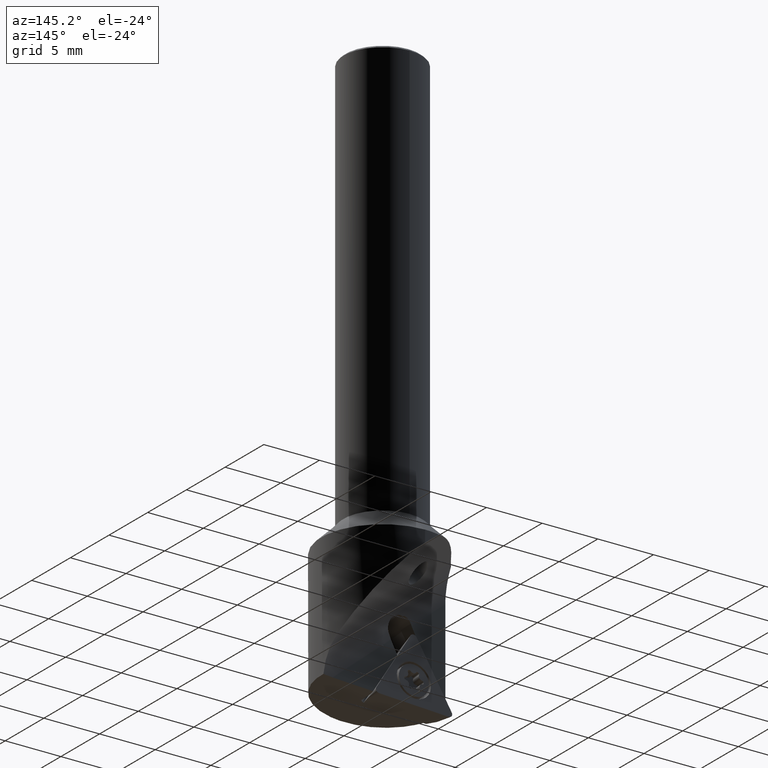
[diagram: clean part render]
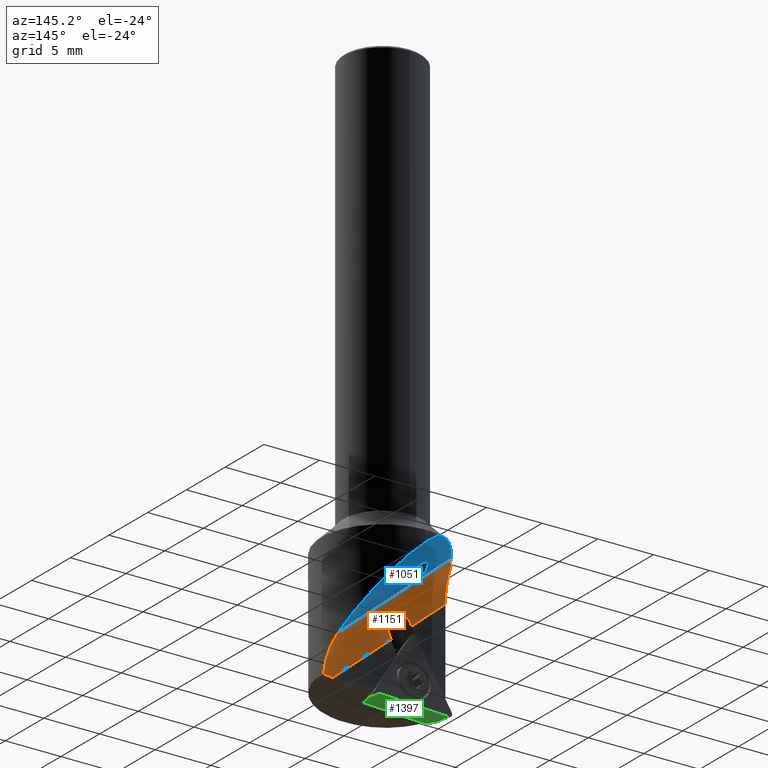
[diagram: same view with three faces highlighted in distinct colors, each labeled with its STEP entity id]
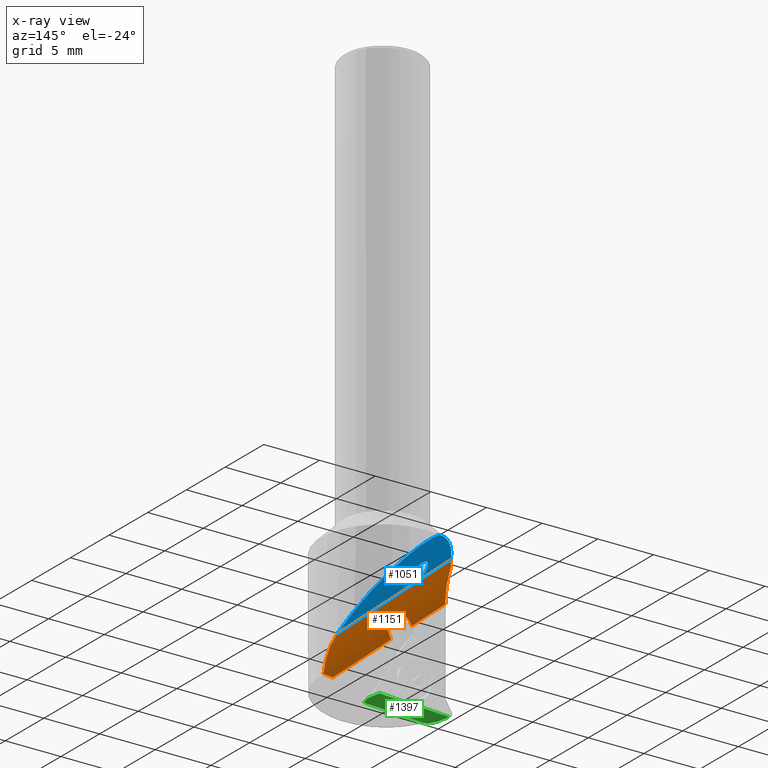
[diagram: x-ray of the same camera — body ghosted, the three highlighted faces saturated]
A machine part, auxiliary view with three faces highlighted in distinct colors.
The next image is the same camera in x-ray (body ghosted, the three faces saturated) — at least one of them is partly hidden behind the body in this view.
Their STEP definitions:

[orange] entity #1151 — the highlighted cylindrical surface (partial cylindrical patch) has radius 3 mm, axis along (-0.766, -0, 0.6428).
#585=EDGE_CURVE('NONE',#1517,#1227,#1623,.T.);
#633=VERTEX_POINT('NONE',#1676);
#645=EDGE_CURVE('NONE',#1227,#657,#1689,.T.);
#657=VERTEX_POINT('NONE',#1701);
#665=VERTEX_POINT('NONE',#1709);
#673=EDGE_CURVE('NONE',#893,#1059,#1719,.T.);
#735=EDGE_CURVE('NONE',#633,#1075,#1786,.T.);
#877=EDGE_CURVE('NONE',#935,#1075,#1947,.T.);
#893=VERTEX_POINT('NONE',#1966);
#921=EDGE_CURVE('NONE',#657,#665,#1997,.T.);
#935=VERTEX_POINT('NONE',#2012);
#1057=VERTEX_POINT('NONE',#2149);
#1059=VERTEX_POINT('NONE',#2151);
#1075=VERTEX_POINT('NONE',#2169);
#1087=VERTEX_POINT('NONE',#2182);
#1119=EDGE_CURVE('NONE',#1173,#1379,#2216,.T.);
#1121=EDGE_CURVE('NONE',#935,#1405,#2218,.T.);
#1151=ADVANCED_FACE('NONE',(#2251),#2252,.F.);
#1173=VERTEX_POINT('NONE',#2276);
#1199=EDGE_CURVE('NONE',#1379,#1305,#2304,.T.);
#1227=VERTEX_POINT('NONE',#2334);
#1231=EDGE_CURVE('NONE',#1305,#1517,#2338,.T.);
#1305=VERTEX_POINT('NONE',#2419);
#1313=EDGE_CURVE('NONE',#1173,#893,#2428,.T.);
#1321=EDGE_CURVE('NONE',#633,#1401,#2436,.T.);
#1355=EDGE_CURVE('NONE',#1059,#1057,#2475,.T.);
#1373=EDGE_CURVE('NONE',#665,#1087,#2494,.T.);
#1379=VERTEX_POINT('NONE',#2501);
#1401=VERTEX_POINT('NONE',#2524);
#1405=VERTEX_POINT('NONE',#2529);
#1517=VERTEX_POINT('NONE',#2649);
#1523=EDGE_CURVE('NONE',#1405,#1087,#2655,.T.);
#1531=EDGE_CURVE('NONE',#1057,#1401,#2665,.T.);
#1623=B_SPLINE_CURVE_WITH_KNOTS('',3,(#2771,#2772,#2773,#2774,#2775,#2776),.UNSPECIFIED.,.F.,.F.,(4,2,4),(0.0,0.000274646844779017,0.000549293689558034),.UNSPECIFIED.);
#1676=CARTESIAN_POINT('',(-5.39223240722244,1.08343420035556,-4.99999999999999));
#1689=B_SPLINE_CURVE_WITH_KNOTS('',3,(#2890,#2891,#2892,#2893,#2894,#2895,#2896,#2897,#2898,#2899),.UNSPECIFIED.,.F.,.F.,(4,2,2,2,4),(0.000549293689558034,0.000816847990642815,0.0010844022917276,0.00135195659281238,0.00161951089389716),.UNSPECIFIED.);
#1701=CARTESIAN_POINT('',(-0.790244442421355,0.514224544557184,-9.89204476732578));
#1709=CARTESIAN_POINT('',(-0.967898861469995,0.491775151667943,-9.8031436174014));
#1719=LINE('',#2968,#2969);
#1786=B_SPLINE_CURVE_WITH_KNOTS('',3,(#3061,#3062,#3063,#3064,#3065,#3066,#3067,#3068),.UNSPECIFIED.,.F.,.F.,(4,2,2,4),(0.000799514902478356,0.00152126247808948,0.00224301005370061,0.00368650520492287),.UNSPECIFIED.);
#1947=LINE('',#3309,#3310);
#1966=CARTESIAN_POINT('',(5.2306787322488,1.70000000000001,-13.2975129704954));
#1997=(B_SPLINE_CURVE(3,(#3386,#3387,#3388,#3389),.UNSPECIFIED.,.F.,.F.)B_SPLINE_CURVE_WITH_KNOTS((4,4),(4.17086109430709,4.187950713552),.UNSPECIFIED.)RATIONAL_B_SPLINE_CURVE((1.0,0.999975662224255,0.999975662224255,1.0))BOUNDED_CURVE()REPRESENTATION_ITEM('')GEOMETRIC_REPRESENTATION_ITEM()CURVE());
#2012=CARTESIAN_POINT('',(-2.47060787011,0.2,-10.226913847407));
#2149=CARTESIAN_POINT('',(-1.99609645606622,1.70000000000001,-7.23352857537918));
#2151=CARTESIAN_POINT('',(-1.51682035220565,1.70000000000001,-7.63568897736066));
#2169=CARTESIAN_POINT('',(-5.49636243346452,0.2,-7.68800430926332));
#2182=CARTESIAN_POINT('',(-1.49656323032141,0.379851121760977,-9.70865511755389));
#2216=(B_SPLINE_CURVE(3,(#3708,#3709,#3710,#3711),.UNSPECIFIED.,.F.,.F.)B_SPLINE_CURVE_WITH_KNOTS((4,4),(4.51171705851309,4.7125516476058),.UNSPECIFIED.)RATIONAL_B_SPLINE_CURVE((1.0,0.99664161247102,0.99664161247102,1.0))BOUNDED_CURVE()REPRESENTATION_ITEM('')GEOMETRIC_REPRESENTATION_ITEM()CURVE());
#2218=(B_SPLINE_CURVE(3,(#3721,#3722,#3723,#3724),.UNSPECIFIED.,.F.,.F.)B_SPLINE_CURVE_WITH_KNOTS((4,4),(3.99713013139344,4.05532574302093),.UNSPECIFIED.)RATIONAL_B_SPLINE_CURVE((1.0,0.999717792478128,0.999717792478128,1.0))BOUNDED_CURVE()REPRESENTATION_ITEM('')GEOMETRIC_REPRESENTATION_ITEM()CURVE());
#2251=FACE_OUTER_BOUND('',#3771,.T.);
#2252=CYLINDRICAL_SURFACE('',#3772,3.0);
#2276=CARTESIAN_POINT('',(5.49383696340205,0.260298712169993,-16.1286403783753));
#2304=LINE('',#3888,#3889);
#2334=CARTESIAN_POINT('',(-0.245605407406325,0.383477007004207,-10.745357847913));
#2338=(B_SPLINE_CURVE(3,(#3956,#3957,#3958,#3959),.UNSPECIFIED.,.F.,.F.)B_SPLINE_CURVE_WITH_KNOTS((4,4),(4.53927260112615,4.72902118801413),.UNSPECIFIED.)RATIONAL_B_SPLINE_CURVE((1.0,0.997001872705169,0.997001872705169,1.0))BOUNDED_CURVE()REPRESENTATION_ITEM('')GEOMETRIC_REPRESENTATION_ITEM()CURVE());
#2419=CARTESIAN_POINT('',(-0.61448920101397,0.2,-11.7843823380668));
#2428=B_SPLINE_CURVE_WITH_KNOTS('',3,(#4098,#4099,#4100,#4101,#4102,#4103,#4104,#4105),.UNSPECIFIED.,.F.,.F.,(4,2,2,4),(0.000783612716467429,0.00159188822053004,0.00240016372459265,0.00401671473271786),.UNSPECIFIED.);
#2436=B_SPLINE_CURVE_WITH_KNOTS('',3,(#4117,#4118,#4119,#4120),.UNSPECIFIED.,.F.,.F.,(4,4),(0.00018360985037396,0.000977220066083566),.UNSPECIFIED.);
#2475=B_SPLINE_CURVE_WITH_KNOTS('',3,(#4171,#4172,#4173,#4174,#4175,#4176),.UNSPECIFIED.,.F.,.F.,(4,2,4),(8.35609744072218E-018,0.000314623680625132,0.000629247361250256),.UNSPECIFIED.);
#2494=B_SPLINE_CURVE_WITH_KNOTS('',3,(#4205,#4206,#4207,#4208),.UNSPECIFIED.,.F.,.F.,(4,4),(0.0,0.000553452322441409),.UNSPECIFIED.);
#2501=CARTESIAN_POINT('',(4.61732304459515,0.2,-16.1743940637461));
#2524=CARTESIAN_POINT('',(-4.96183459665937,1.70000000000001,-4.7449787954391));
#2529=CARTESIAN_POINT('',(-2.39220927670643,0.205078660239046,-10.0649197727321));
#2649=CARTESIAN_POINT('',(-0.35322841797253,0.253844942948738,-11.2649597247355));
#2655=B_SPLINE_CURVE_WITH_KNOTS('',3,(#4428,#4429,#4430,#4431,#4432,#4433),.UNSPECIFIED.,.F.,.F.,(4,2,4),(0.000337180545609895,0.000874533225097171,0.00141188590458445),.UNSPECIFIED.);
#2665=LINE('',#4444,#4445);
#2771=CARTESIAN_POINT('',(-0.35322841797253,0.253844942948738,-11.2649597247355));
#2772=CARTESIAN_POINT('',(-0.312473839051354,0.270908735105494,-11.1831759405278));
#2773=CARTESIAN_POINT('',(-0.283709459941784,0.291046021674994,-11.0985586016573));
#2774=CARTESIAN_POINT('',(-0.247817861376759,0.335419461187564,-10.9238627310224));
#2775=CARTESIAN_POINT('',(-0.241099029862915,0.359702852291167,-10.8337530784369));
#2776=CARTESIAN_POINT('',(-0.245605407406325,0.383477007004207,-10.745357847913));
#2890=CARTESIAN_POINT('',(-0.245605407406325,0.383477007004207,-10.745357847913));
#2891=CARTESIAN_POINT('',(-0.249995411212927,0.406637212442749,-10.6592453562836));
#2892=CARTESIAN_POINT('',(-0.265170944450912,0.429927405691464,-10.5723919904503));
#2893=CARTESIAN_POINT('',(-0.316465018154367,0.47116081576868,-10.4060444817799));
#2894=CARTESIAN_POINT('',(-0.352171017871818,0.489158832366191,-10.3264999507081));
#2895=CARTESIAN_POINT('',(-0.446233765415185,0.516259595344174,-10.1749097734003));
#2896=CARTESIAN_POINT('',(-0.503133038777117,0.524717026415085,-10.1056938907787));
#2897=CARTESIAN_POINT('',(-0.634266417255655,0.528986957554798,-9.9847177808042));
#2898=CARTESIAN_POINT('',(-0.709612598682965,0.524643381846213,-9.93237414771582));
#2899=CARTESIAN_POINT('',(-0.790244442421355,0.514224544557184,-9.89204476732578));
#2968=CARTESIAN_POINT('',(13.160677844464,1.70000000000001,-19.9515723007912));
#2969=VECTOR('',#4667,1000.0);
#3061=CARTESIAN_POINT('',(-5.39223240722244,1.08343420035556,-4.99999999999999));
#3062=CARTESIAN_POINT('',(-5.42410737721465,0.924793051576207,-5.17941983037133));
#3063=CARTESIAN_POINT('',(-5.44376411494984,0.792603546215071,-5.37980285961335));
#3064=CARTESIAN_POINT('',(-5.47174278441264,0.568171648286421,-5.80965566438121));
#3065=CARTESIAN_POINT('',(-5.47951210402861,0.479519723261509,-6.03250114644629));
#3066=CARTESIAN_POINT('',(-5.49527683438106,0.268143182434374,-6.71918313139317));
#3067=CARTESIAN_POINT('',(-5.49636243346452,0.2,-7.20356380666663));
#3068=CARTESIAN_POINT('',(-5.49636243346452,0.2,-7.68800430926332));
#3309=CARTESIAN_POINT('',(11.4906666467847,0.2,-21.941814145298));
#3310=VECTOR('',#4988,1000.0);
#3386=CARTESIAN_POINT('',(-0.790244442421355,0.514224544557184,-9.89204476732578));
#3387=CARTESIAN_POINT('',(-0.849172029293895,0.506610221096445,-9.86257113809612));
#3388=CARTESIAN_POINT('',(-0.908391610249654,0.499126908006167,-9.83293670021836));
#3389=CARTESIAN_POINT('',(-0.967898861469995,0.491775151667943,-9.8031436174014));
#3708=CARTESIAN_POINT('',(5.49383696340205,0.260298712169993,-16.1286403783753));
#3709=CARTESIAN_POINT('',(5.20511628281021,0.220167300333235,-16.1437090704082));
#3710=CARTESIAN_POINT('',(4.9119604456336,0.199999999999999,-16.1590116909951));
#3711=CARTESIAN_POINT('',(4.61732304459515,0.2,-16.1743940637461));
#3721=CARTESIAN_POINT('',(-2.47060787011,0.2,-10.226913847407));
#3722=CARTESIAN_POINT('',(-2.44417883853966,0.2,-10.1731107401929));
#3723=CARTESIAN_POINT('',(-2.41803859709903,0.201693364626584,-10.1190974723508));
#3724=CARTESIAN_POINT('',(-2.39220927670643,0.205078660239046,-10.0649197727321));
#3771=EDGE_LOOP('',(#5350,#5351,#5352,#5353,#5354,#5355,#5356,#5357,#5358,#5359,#5360,#5361,#5362,#5363,#5364,#5365));
#3772=AXIS2_PLACEMENT_3D('',#5366,#5367,#5368);
#3888=CARTESIAN_POINT('',(11.4906666467847,0.2,-21.941814145298));
#3889=VECTOR('',#5411,1000.0);
#3956=CARTESIAN_POINT('',(-0.61448920101397,0.2,-11.7843823380668));
#3957=CARTESIAN_POINT('',(-0.526182603806572,0.200000000000001,-11.6104088610781));
#3958=CARTESIAN_POINT('',(-0.438833793273061,0.218002287465666,-11.4367473305931));
#3959=CARTESIAN_POINT('',(-0.35322841797253,0.253844942948738,-11.2649597247355));
#4098=CARTESIAN_POINT('',(5.49383696340205,0.260298712169993,-16.1286403783753));
#4099=CARTESIAN_POINT('',(5.49188183136425,0.301563521235249,-15.862398051474));
#4100=CARTESIAN_POINT('',(5.48857548803301,0.364211410393489,-15.5982121509674));
#4101=CARTESIAN_POINT('',(5.47483017926393,0.53230193266461,-15.0813811770851));
#4102=CARTESIAN_POINT('',(5.46448830800121,0.636128943225628,-14.8332331633117));
#4103=CARTESIAN_POINT('',(5.4133182051032,1.00357162826744,-14.1186145099209));
#4104=CARTESIAN_POINT('',(5.35127053266265,1.32895472605395,-13.678349887401));
#4105=CARTESIAN_POINT('',(5.2306787322488,1.70000000000001,-13.2975129704954));
#4117=CARTESIAN_POINT('',(-5.39223240722244,1.08343420035556,-4.99999999999999));
#4118=CARTESIAN_POINT('',(-5.23937218578589,1.26928001468303,-4.88674434025998));
#4119=CARTESIAN_POINT('',(-5.09746557149965,1.47535932610156,-4.80047745979345));
#4120=CARTESIAN_POINT('',(-4.96183459665937,1.70000000000001,-4.7449787954391));
#4171=CARTESIAN_POINT('',(-1.51682035220565,1.70000000000001,-7.63568897736066));
#4172=CARTESIAN_POINT('',(-1.6045856799347,1.67475164889711,-7.58107423105676));
#4173=CARTESIAN_POINT('',(-1.68895834121201,1.66259879810047,-7.51990901890384));
#4174=CARTESIAN_POINT('',(-1.850579525401,1.66255840687202,-7.3843242103322));
#4175=CARTESIAN_POINT('',(-1.92695993357362,1.67496391840158,-7.31041013103093));
#4176=CARTESIAN_POINT('',(-1.99609645606622,1.70000000000001,-7.23352857537918));
#4205=CARTESIAN_POINT('',(-0.967898861469995,0.491775151667943,-9.8031436174014));
#4206=CARTESIAN_POINT('',(-1.134502972648,0.471192234372836,-9.7197310923699));
#4207=CARTESIAN_POINT('',(-1.3182256073711,0.426726083267364,-9.68962911207941));
#4208=CARTESIAN_POINT('',(-1.49656323032141,0.379851121760977,-9.70865511755389));
#4428=CARTESIAN_POINT('',(-2.39220927670643,0.205078660239046,-10.0649197727321));
#4429=CARTESIAN_POINT('',(-2.31521411550966,0.215169958709858,-9.90342033519366));
#4430=CARTESIAN_POINT('',(-2.17569150647746,0.244185912581087,-9.77299487465246));
#4431=CARTESIAN_POINT('',(-1.84983557926231,0.317957692571428,-9.64062867189613));
#4432=CARTESIAN_POINT('',(-1.66211390665028,0.361133414268592,-9.63709307980794));
#4433=CARTESIAN_POINT('',(-1.49656323032141,0.379851121760977,-9.70865511755389));
#4444=CARTESIAN_POINT('',(13.160677844464,1.70000000000001,-19.9515723007912));
#4445=VECTOR('',#5783,1000.0);
#4667=DIRECTION('',(-0.766044443118982,0.0,0.642787609686535));
#4988=DIRECTION('',(-0.766044443118982,0.0,0.642787609686535));
#5350=ORIENTED_EDGE('',*,*,#1355,.F.);
#5351=ORIENTED_EDGE('',*,*,#673,.F.);
#5352=ORIENTED_EDGE('',*,*,#1313,.F.);
#5353=ORIENTED_EDGE('',*,*,#1119,.T.);
#5354=ORIENTED_EDGE('',*,*,#1199,.T.);
#5355=ORIENTED_EDGE('',*,*,#1231,.T.);
#5356=ORIENTED_EDGE('',*,*,#585,.T.);
#5357=ORIENTED_EDGE('',*,*,#645,.T.);
#5358=ORIENTED_EDGE('',*,*,#921,.T.);
#5359=ORIENTED_EDGE('',*,*,#1373,.T.);
#5360=ORIENTED_EDGE('',*,*,#1523,.F.);
#5361=ORIENTED_EDGE('',*,*,#1121,.F.);
#5362=ORIENTED_EDGE('',*,*,#877,.T.);
#5363=ORIENTED_EDGE('',*,*,#735,.F.);
#5364=ORIENTED_EDGE('',*,*,#1321,.T.);
#5365=ORIENTED_EDGE('',*,*,#1531,.F.);
#5366=CARTESIAN_POINT('',(11.4906666467847,3.2,-21.941814145298));
#5367=DIRECTION('',(-0.766044443118982,-0.0,0.642787609686535));
#5368=DIRECTION('',(0.642787609686535,0.0,0.766044443118982));
#5411=DIRECTION('',(-0.766044443118982,0.0,0.642787609686535));
#5783=DIRECTION('',(-0.766044443118982,0.0,0.642787609686535));

[blue] entity #1051 — the highlighted planar face has unit normal (0.5567, -0.5, 0.6634).
#651=EDGE_CURVE('NONE',#875,#1069,#1695,.T.);
#673=EDGE_CURVE('NONE',#893,#1059,#1719,.T.);
#679=VERTEX_POINT('NONE',#1727);
#747=EDGE_CURVE('NONE',#1057,#875,#1801,.T.);
#875=VERTEX_POINT('NONE',#1945);
#893=VERTEX_POINT('NONE',#1966);
#895=VERTEX_POINT('NONE',#1968);
#971=EDGE_CURVE('NONE',#679,#895,#2054,.T.);
#983=EDGE_CURVE('NONE',#893,#679,#2067,.T.);
#1051=ADVANCED_FACE('NONE',(#2141),#2142,.F.);
#1057=VERTEX_POINT('NONE',#2149);
#1059=VERTEX_POINT('NONE',#2151);
#1069=VERTEX_POINT('NONE',#2163);
#1153=EDGE_CURVE('NONE',#1401,#895,#2254,.T.);
#1229=EDGE_CURVE('NONE',#1069,#1059,#2336,.T.);
#1401=VERTEX_POINT('NONE',#2524);
#1531=EDGE_CURVE('NONE',#1057,#1401,#2665,.T.);
#1695=(B_SPLINE_CURVE(3,(#2919,#2920,#2921,#2922),.UNSPECIFIED.,.F.,.F.)B_SPLINE_CURVE_WITH_KNOTS((4,4),(1.14821780070307,4.28981045429286),.UNSPECIFIED.)RATIONAL_B_SPLINE_CURVE((1.0,0.333333333333334,0.333333333333334,1.0))BOUNDED_CURVE()REPRESENTATION_ITEM('')GEOMETRIC_REPRESENTATION_ITEM()CURVE());
#1719=LINE('',#2968,#2969);
#1727=CARTESIAN_POINT('',(6.73555739531044E-016,5.5,-6.04447882584592));
#1801=(B_SPLINE_CURVE(3,(#3085,#3086,#3087,#3088),.UNSPECIFIED.,.F.,.F.)B_SPLINE_CURVE_WITH_KNOTS((4,4),(4.89923261442062,7.43140310788266),.UNSPECIFIED.)RATIONAL_B_SPLINE_CURVE((1.0,0.533345051519361,0.533345051519361,1.0))BOUNDED_CURVE()REPRESENTATION_ITEM('')GEOMETRIC_REPRESENTATION_ITEM()CURVE());
#1945=CARTESIAN_POINT('',(-1.41974748632005,3.35350197122445,-6.47093596494911));
#1966=CARTESIAN_POINT('',(5.2306787322488,1.70000000000001,-13.2975129704954));
#1968=CARTESIAN_POINT('',(-1.40981237727225,5.31624200548564,-4.99999999999999));
#2054=(B_SPLINE_CURVE(3,(#3470,#3471,#3472,#3473),.UNSPECIFIED.,.F.,.F.)B_SPLINE_CURVE_WITH_KNOTS((4,4),(5.44420737165672,5.70343030315731),.UNSPECIFIED.)RATIONAL_B_SPLINE_CURVE((1.0,0.994408124116888,0.994408124116888,1.0))BOUNDED_CURVE()REPRESENTATION_ITEM('')GEOMETRIC_REPRESENTATION_ITEM()CURVE());
#2067=(B_SPLINE_CURVE(3,(#3500,#3501,#3502,#3503),.UNSPECIFIED.,.F.,.F.)B_SPLINE_CURVE_WITH_KNOTS((4,4),(4.18764802973384,5.44420737165672),.UNSPECIFIED.)RATIONAL_B_SPLINE_CURVE((1.0,0.872693223303928,0.872693223303928,1.0))BOUNDED_CURVE()REPRESENTATION_ITEM('')GEOMETRIC_REPRESENTATION_ITEM()CURVE());
#2141=FACE_OUTER_BOUND('',#3617,.T.);
#2142=PLANE('',#3618);
#2149=CARTESIAN_POINT('',(-1.99609645606622,1.70000000000001,-7.23352857537918));
#2151=CARTESIAN_POINT('',(-1.51682035220565,1.70000000000001,-7.63568897736066));
#2163=CARTESIAN_POINT('',(-1.50065733360385,1.7047875555528,-7.64564308860539));
#2254=B_SPLINE_CURVE_WITH_KNOTS('',3,(#3775,#3776,#3777,#3778,#3779,#3780),.UNSPECIFIED.,.F.,.F.,(4,2,4),(2.35393009497467E-007,0.00257469070576659,0.00514914601852368),.UNSPECIFIED.);
#2336=(B_SPLINE_CURVE(3,(#3943,#3944,#3945,#3946),.UNSPECIFIED.,.F.,.F.)B_SPLINE_CURVE_WITH_KNOTS((4,4),(4.28981045429286,4.30822234192983),.UNSPECIFIED.)RATIONAL_B_SPLINE_CURVE((1.0,0.999971750398982,0.999971750398982,1.0))BOUNDED_CURVE()REPRESENTATION_ITEM('')GEOMETRIC_REPRESENTATION_ITEM()CURVE());
#2524=CARTESIAN_POINT('',(-4.96183459665937,1.70000000000001,-4.7449787954391));
#2665=LINE('',#4444,#4445);
#2919=CARTESIAN_POINT('',(-1.41974748632005,3.35350197122445,-6.47093596494911));
#2920=CARTESIAN_POINT('',(0.336812125136202,3.88876024165842,-7.54145250581706));
#2921=CARTESIAN_POINT('',(0.255902277852404,2.24004582598678,-8.71615962947334));
#2922=CARTESIAN_POINT('',(-1.50065733360385,1.7047875555528,-7.64564308860539));
#2968=CARTESIAN_POINT('',(13.160677844464,1.70000000000001,-19.9515723007912));
#2969=VECTOR('',#4667,1000.0);
#3085=CARTESIAN_POINT('',(-1.99609645606622,1.70000000000001,-7.23352857537918));
#3086=CARTESIAN_POINT('',(-2.82721051993181,2.00096740145957,-6.30930878748232));
#3087=CARTESIAN_POINT('',(-2.46700032823427,3.03438342767251,-5.83269887784524));
#3088=CARTESIAN_POINT('',(-1.41974748632005,3.35350197122445,-6.47093596494911));
#3470=CARTESIAN_POINT('',(6.73555739531044E-016,5.5,-6.04447882584592));
#3471=CARTESIAN_POINT('',(-0.476577511617298,5.5,-5.64458281162047));
#3472=CARTESIAN_POINT('',(-0.949157579794125,5.43840289177794,-5.29446538983804));
#3473=CARTESIAN_POINT('',(-1.40981237727225,5.31624200548564,-4.99999999999999));
#3500=CARTESIAN_POINT('',(5.2306787322488,1.70000000000001,-13.2975129704954));
#3501=CARTESIAN_POINT('',(4.46738531938592,4.04855448301616,-10.8869816652867));
#3502=CARTESIAN_POINT('',(2.46947868867401,5.5,-8.11661748271241));
#3503=CARTESIAN_POINT('',(6.73555739531044E-016,5.5,-6.04447882584592));
#3617=EDGE_LOOP('',(#5239,#5240,#5241,#5242,#5243,#5244,#5245,#5246));
#3618=AXIS2_PLACEMENT_3D('',#5247,#5248,#5249);
#3775=CARTESIAN_POINT('',(-4.96183459665937,1.70000000000001,-4.7449787954391));
#3776=CARTESIAN_POINT('',(-4.52161613152153,2.42911790826224,-4.56484636722319));
#3777=CARTESIAN_POINT('',(-3.99968501724668,3.10859911930976,-4.49068904221143));
#3778=CARTESIAN_POINT('',(-2.77747303890938,4.34571099711235,-4.5838635845762));
#3779=CARTESIAN_POINT('',(-2.11179932897322,4.86923168411414,-4.74786451742378));
#3780=CARTESIAN_POINT('',(-1.40981237727225,5.31624200548564,-4.99999999999999));
#3943=CARTESIAN_POINT('',(-1.50065733360385,1.7047875555528,-7.64564308860539));
#3944=CARTESIAN_POINT('',(-1.50604767277447,1.70314501316329,-7.64235800382637));
#3945=CARTESIAN_POINT('',(-1.51143549784564,1.70154911622891,-7.63903987300892));
#3946=CARTESIAN_POINT('',(-1.51682035220565,1.70000000000001,-7.63568897736066));
#4444=CARTESIAN_POINT('',(13.160677844464,1.70000000000001,-19.9515723007912));
#4445=VECTOR('',#5783,1000.0);
#4667=DIRECTION('',(-0.766044443118982,0.0,0.642787609686535));
#5239=ORIENTED_EDGE('',*,*,#747,.F.);
#5240=ORIENTED_EDGE('',*,*,#1531,.T.);
#5241=ORIENTED_EDGE('',*,*,#1153,.T.);
#5242=ORIENTED_EDGE('',*,*,#971,.F.);
#5243=ORIENTED_EDGE('',*,*,#983,.F.);
#5244=ORIENTED_EDGE('',*,*,#673,.T.);
#5245=ORIENTED_EDGE('',*,*,#1229,.F.);
#5246=ORIENTED_EDGE('',*,*,#651,.F.);
#5247=CARTESIAN_POINT('',(13.160677844464,1.70000000000002,-19.9515723007912));
#5248=DIRECTION('',(0.556670399226418,-0.499999999999995,0.663413948168944));
#5249=DIRECTION('',(-0.66822355036879,-0.743960541112585,0.0));
#5783=DIRECTION('',(-0.766044443118982,0.0,0.642787609686535));

[green] entity #1397 — the highlighted planar face has unit normal (0.0533, -0.1047, -0.9931).
#555=EDGE_CURVE('NONE',#1389,#1285,#1588,.T.);
#579=EDGE_CURVE('NONE',#731,#1285,#1615,.T.);
#589=EDGE_CURVE('NONE',#1399,#833,#1628,.T.);
#731=VERTEX_POINT('NONE',#1781);
#827=EDGE_CURVE('NONE',#833,#731,#1893,.T.);
#833=VERTEX_POINT('NONE',#1899);
#1081=VERTEX_POINT('NONE',#2175);
#1175=EDGE_CURVE('NONE',#1081,#1389,#2278,.T.);
#1285=VERTEX_POINT('NONE',#2396);
#1349=EDGE_CURVE('NONE',#1081,#1399,#2468,.T.);
#1389=VERTEX_POINT('NONE',#2511);
#1397=ADVANCED_FACE('NONE',(#2519),#2520,.T.);
#1399=VERTEX_POINT('NONE',#2522);
#1588=LINE('',#2723,#2724);
#1615=LINE('',#2761,#2762);
#1628=LINE('',#2782,#2783);
#1781=CARTESIAN_POINT('',(0.79445209934497,0.720554026110945,-16.6655396725879));
#1893=LINE('',#3220,#3221);
#1899=CARTESIAN_POINT('',(0.778152214183413,-0.843047305143769,-16.50163594251));
#2175=CARTESIAN_POINT('',(-5.13652306356246,-1.7842215162467,-16.7201073309372));
#2278=LINE('',#3833,#3834);
#2396=CARTESIAN_POINT('',(-5.43172036351592,0.750081237035106,-17.0030372378057));
#2468=LINE('',#4160,#4161);
#2511=CARTESIAN_POINT('',(-5.44802024867748,-0.813520094219611,-16.8391335077278));
#2519=FACE_OUTER_BOUND('',#4238,.T.);
#2520=PLANE('',#4239);
#2522=CARTESIAN_POINT('',(0.44644852078129,-1.81069838956459,-16.4174752841002));
#2723=CARTESIAN_POINT('',(-5.43172036351592,0.750081237035106,-17.0030372378057));
#2724=VECTOR('',#4518,1000.0);
#2761=CARTESIAN_POINT('',(-5.43172036351592,0.750081237035106,-17.0030372378057));
#2762=VECTOR('',#4556,1000.0);
#2782=CARTESIAN_POINT('',(1.26060434752449,0.564369432428315,-16.6240448574568));
#2783=VECTOR('',#4583,1000.0);
#3220=CARTESIAN_POINT('',(0.79445209934497,0.720554026110945,-16.6655396725879));
#3221=VECTOR('',#4919,1000.0);
#3833=CARTESIAN_POINT('',(-5.90108267902641,0.598333259268513,-17.0122531746421));
#3834=VECTOR('',#5390,1000.0);
#4160=CARTESIAN_POINT('',(-5.45812350282103,-1.78269634744356,-16.7375400901276));
#4161=VECTOR('',#5596,1000.0);
#4238=EDGE_LOOP('',(#5640,#5641,#5642,#5643,#5644,#5645));
#4239=AXIS2_PLACEMENT_3D('',#5646,#5647,#5648);
#4518=DIRECTION('',(0.0103672157080985,0.99449733062047,-0.104247686915453));
#4556=DIRECTION('',(-0.998522874292712,0.0047354286598565,-0.0541261972581545));
#4583=DIRECTION('',(0.323177779707442,0.942779158673716,-0.0819974430933574));
#4919=DIRECTION('',(0.0103672157080991,0.99449733062047,-0.104247686915453));
#5390=DIRECTION('',(-0.30349064744525,0.94575109222333,-0.11596679900576));
#5596=DIRECTION('',(0.998522874292712,-0.00473542865985651,0.0541261972581545));
#5640=ORIENTED_EDGE('',*,*,#1349,.F.);
#5641=ORIENTED_EDGE('',*,*,#1175,.T.);
#5642=ORIENTED_EDGE('',*,*,#555,.T.);
#5643=ORIENTED_EDGE('',*,*,#579,.F.);
#5644=ORIENTED_EDGE('',*,*,#827,.F.);
#5645=ORIENTED_EDGE('',*,*,#589,.F.);
#5646=CARTESIAN_POINT('',(-5.43172036351592,0.750081237035106,-17.0030372378057));
#5647=DIRECTION('',(0.0533347012055285,-0.104654837939619,-0.993077426257968));
#5648=DIRECTION('',(-0.0990345530299811,0.989035621338546,-0.109547692945256));